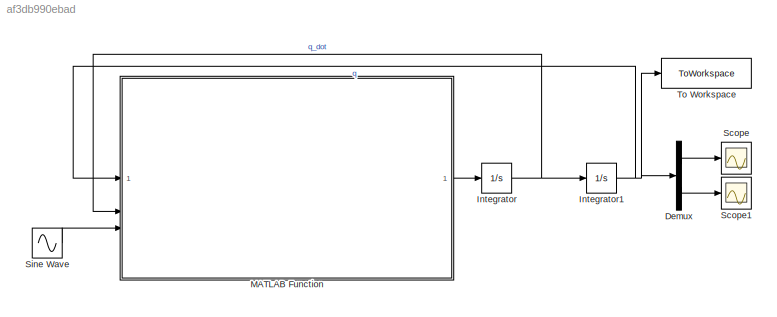
MODEL slx_af3db990ebad
KIND model
CONFIG AbsTol = auto
CONFIG EnableMultiTasking = off
CONFIG FixedStep = 1e-3
CONFIG MaxStep = auto
CONFIG MinStep = auto
CONFIG RelTol = 1e-3
CONFIG SampleTimeConstraint = Unconstrained
CONFIG SolverName = ode4
CONFIG StartTime = 0.0
CONFIG StopTime = 130
BLOCK [Demux] Demux
  Outputs = 2
BLOCK [Integrator] Integrator
  InitialCondition = [0,0]
BLOCK [Integrator] Integrator1
  InitialCondition = [12.5 , pi/2]
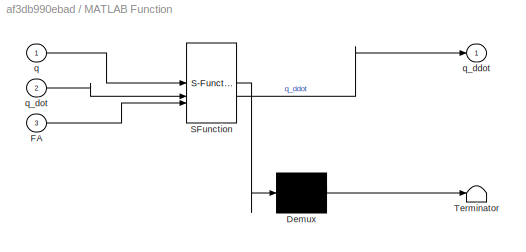
BLOCK [SubSystem] MATLAB Function
  ErrorFcn = Stateflow.Translate.translate
  PermitHierarchicalResolution = ExplicitOnly
  SFBlockType = MATLAB Function
  TreatAsAtomicUnit = on
BLOCK [Demux] MATLAB Function/ Demux 
  Outputs = 1
BLOCK [S-Function] MATLAB Function/ SFunction 
  EnableBusSupport = off
  FunctionName = sf_sfun
  PortCounts = [3 2]
  SFcnIsStateOwnerBlock = off
  SFunctionDeploymentMode = off
  Tag = Stateflow S-Function 2
BLOCK [Terminator] MATLAB Function/ Terminator 
BLOCK [Inport] MATLAB Function/FA
  Port = 3
BLOCK [Inport] MATLAB Function/q
BLOCK [Outport] MATLAB Function/q_ddot
BLOCK [Inport] MATLAB Function/q_dot
  Port = 2
BLOCK [Scope] Scope
  ActiveDisplayYMaximum = 13.817637729028917
  ActiveDisplayYMinimum = 5.0510433459709052
  Floating = off
  GraphicalSettings = {"Style":{"BackgroundColor":[0.12941176470588237,0.12941176470588237,0.12941176470588237],"AxesColor":[0.07058823529411765,0.07058823529411765,0.07058823529411765],"LabelsColor":[0.8509803921568627,0.8509803921568627,0.8509803921568627],"PreserveColors":false,"Visible":[true],"LineStyle":["-"],"LineWidth":[1.5],"BarWidth":[0.9],"LineColor":["auto"],"LineFaceAlpha":[1],"LineEdgeAlpha":[1],"Marker":...<+2027ch>
  MultipleDisplayCache = [{"MaxYLimMag":12.13295677308127,"MaxYLimReal":13.817637729028917,"MinYLimMag":5.8033890422685772,"MinYLimReal":5.0510433459709052,"PlotAsMagnitudePhase":false,"ShowGrid":true,"ShowLegend":false,"Title":"%<SignalLabel>","YLabel":""}]
  NumInputPorts = 1
  ScopeFrameLocation = window
  WasSavedAsWebScope = on
  WindowPosition = [778.000000,211.000000,701.000000,533.000000,]
BLOCK [Scope] Scope1
  ActiveDisplayYMaximum = 1
  ActiveDisplayYMinimum = -1
  DataLoggingVariableName = ScopeData1
  Floating = off
  GraphicalSettings = {"Style":{"BackgroundColor":[0.12941176470588237,0.12941176470588237,0.12941176470588237],"AxesColor":[0.07058823529411765,0.07058823529411765,0.07058823529411765],"LabelsColor":[0.8509803921568627,0.8509803921568627,0.8509803921568627],"PreserveColors":false,"Visible":[true],"LineStyle":["-"],"LineWidth":[1.5],"BarWidth":[0.9],"LineColor":["auto"],"LineFaceAlpha":[1],"LineEdgeAlpha":[1],"Marker":...<+1898ch>
  MultipleDisplayCache = [{"MaxYLimMag":1,"MaxYLimReal":1,"MinYLimMag":0,"MinYLimReal":-1,"PlotAsMagnitudePhase":false,"ShowGrid":true,"ShowLegend":false,"Title":"%<SignalLabel>","YLabel":""}]
  NumInputPorts = 1
  ScopeFrameLocation = window
  WasSavedAsWebScope = on
  WindowPosition = [488.000000,222.000000,560.000000,420.000000,]
BLOCK [Sin] Sine Wave
  Amplitude = 1500
  Frequency = 1.1096*1.3
  SampleTime = 0
BLOCK [ToWorkspace] To Workspace
  FixptAsFi = on
  MaxDataPoints = inf
  SampleTime = -1
  VariableName = q
LINE Demux:1 -> Scope:1
LINE Demux:2 -> Scope1:1
NET Integrator1:1 -> Demux:1, MATLAB Function:1, To Workspace:1
NET Integrator:1 -> Integrator1:1, MATLAB Function:2
LINE MATLAB Function:1 -> Integrator:1
LINE Sine Wave:1 -> MATLAB Function:3
note: NET lines group one-source signal fan-out (src -> all destinations, sorted); 1:1 wires keep LINE
CHART MATLAB Function states=1 transitions=1
  STATE_LABEL 'eML_blk_kernel()'
  STATE_LABEL 'SCRIPT:\nfunction q_ddot = fcn(q, q_dot,FA)\n%Constants\ng       = 9.81;\nL2      = 10;\nm2      = 2000;\nm3      = 500;\ndW      = 2000;\ndx      = 200;\nkx      = 0;\nk_theta = 200;\nLx      = 12.5;\nd_theta = 10;\ntheta_ref = 0;\n\n%Generalized constants\nx         = q(1);\ntheta     = q(2);\nx_dot     = q_dot(1);\ntheta_dot = q_dot(2);\n\nM = [2500,                    5000*sin(391/250); \n     5000*sin(391/250),   ...<+563ch>'
CHART  states=0 transitions=0
